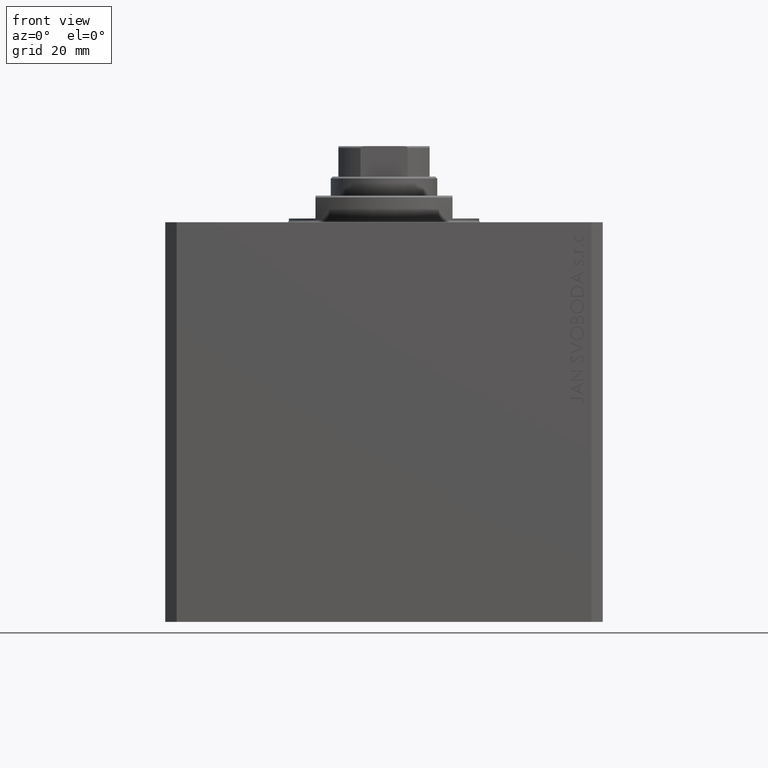
[diagram: clean part render]
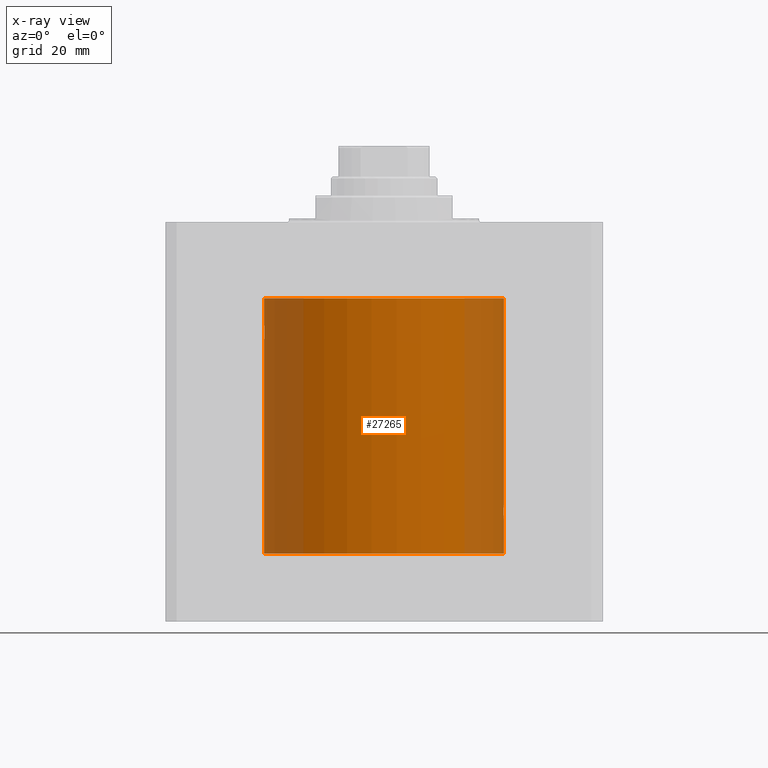
[diagram: x-ray — body ghosted, one internal face saturated and labeled with its STEP entity id]
A machine part, front view, then the same camera in x-ray: the body is ghosted and one INTERNAL B-rep face — a face not visible from any outside direction — is saturated and labeled: STEP entity #27265.
In plain terms, the highlighted cylindrical surface (partial cylindrical patch) has radius 31.5 mm, axis along (0, 0, 1).
Its self-contained STEP definition (entity closure, byte-faithful):
#1184 = EDGE_CURVE ( 'NONE', #8783, #36274, #15255, .T. ) ;
#1388 = CARTESIAN_POINT ( 'NONE',  ( -31.43643703231417774, -2.000106678383414049, -28.86966175168553406 ) ) ;
#1609 = CARTESIAN_POINT ( 'NONE',  ( -31.47646037642386219, -1.222440709149324567, -27.41163978522611799 ) ) ;
#2554 = EDGE_CURVE ( 'NONE', #32844, #39432, #33006, .T. ) ;
#2645 = CARTESIAN_POINT ( 'NONE',  ( 31.49999999999999289, -0.2641644753935982193, -77.99999999999994316 ) ) ;
#3361 = EDGE_CURVE ( 'NONE', #26613, #8783, #37581, .T. ) ;
#4435 = CARTESIAN_POINT ( 'NONE',  ( 0.000000000000000000, 0.000000000000000000, -87.09999999999999432 ) ) ;
#4651 = CARTESIAN_POINT ( 'NONE',  ( 31.50000000000000000, -8.369814204394935255E-24, -74.00000000000000000 ) ) ;
#4910 = DIRECTION ( 'NONE',  ( 1.000000000000000000, 0.000000000000000000, 0.000000000000000000 ) ) ;
#4988 = CARTESIAN_POINT ( 'NONE',  ( -31.50000000000000000, -0.2643002226642394148, -26.99999999999999289 ) ) ;
#5360 = DIRECTION ( 'NONE',  ( -0.000000000000000000, -0.000000000000000000, 1.000000000000000000 ) ) ;
#6443 = CARTESIAN_POINT ( 'NONE',  ( 31.43644381923633446, -1.999999999999602318, -76.13191476749157971 ) ) ;
#6897 = DIRECTION ( 'NONE',  ( 0.000000000000000000, 0.000000000000000000, 1.000000000000000000 ) ) ;
#6907 = VECTOR ( 'NONE', #40187, 1000.000000000000000 ) ;
#7145 = DIRECTION ( 'NONE',  ( 1.000000000000000000, 0.000000000000000000, 0.000000000000000000 ) ) ;
#7770 = EDGE_CURVE ( 'NONE', #26613, #43417, #10225, .T. ) ;
#7980 = EDGE_CURVE ( 'NONE', #32844, #9685, #17343, .T. ) ;
#8231 = VERTEX_POINT ( 'NONE', #16417 ) ;
#8520 = EDGE_LOOP ( 'NONE', ( #41028, #13165, #19204, #23226, #15369, #30297, #30071, #13924, #30282 ) ) ;
#8681 = CARTESIAN_POINT ( 'NONE',  ( 31.48485268472537513, -1.006016242866561550, -74.25189869564472644 ) ) ;
#8783 = VERTEX_POINT ( 'NONE', #25972 ) ;
#9029 = CARTESIAN_POINT ( 'NONE',  ( -31.44868351550920238, -1.798006778418087315, -28.11434503785448413 ) ) ;
#9602 = CARTESIAN_POINT ( 'NONE',  ( 31.45986829311679500, -1.591210340082438002, -77.21864166122153961 ) ) ;
#9685 = VERTEX_POINT ( 'NONE', #14934 ) ;
#9818 = CARTESIAN_POINT ( 'NONE',  ( 31.47236300924845764, -1.322453193766294888, -77.50602960223193350 ) ) ;
#10225 = LINE ( 'NONE', #37669, #20364 ) ;
#10878 = CARTESIAN_POINT ( 'NONE',  ( -31.50000000000000000, 3.857637417314162689E-15, -87.09999999999999432 ) ) ;
#11385 = CARTESIAN_POINT ( 'NONE',  ( 31.46411164879456379, -1.506057066634440167, -74.67757528993223559 ) ) ;
#11412 = AXIS2_PLACEMENT_3D ( 'NONE', #41345, #24239, #7145 ) ;
#11725 = CARTESIAN_POINT ( 'NONE',  ( -31.49655899566844397, -0.5241554089610698242, -30.94759297982581714 ) ) ;
#11884 = EDGE_CURVE ( 'NONE', #8231, #9685, #32656, .T. ) ;
#11946 = CARTESIAN_POINT ( 'NONE',  ( -31.48417770553094286, -1.004227724430747370, -27.26541759009648302 ) ) ;
#12166 = CARTESIAN_POINT ( 'NONE',  ( -31.47233969101135287, -1.323008904738059099, -27.49445245095093426 ) ) ;
#12394 = CARTESIAN_POINT ( 'NONE',  ( -31.50000000000000711, -0.2610337600763850685, -30.99999999999999645 ) ) ;
#12626 = CARTESIAN_POINT ( 'NONE',  ( -31.45993227857327312, -1.589955021705260263, -30.22030274622138535 ) ) ;
#12742 = LINE ( 'NONE', #18610, #6907 ) ;
#12866 = CARTESIAN_POINT ( 'NONE',  ( 31.50000000000000000, -8.369814204394935255E-24, -74.00000000000000000 ) ) ;
#13165 = ORIENTED_EDGE ( 'NONE', *, *, #7770, .T. ) ;
#13750 = EDGE_CURVE ( 'NONE', #39432, #36274, #33415, .T. ) ;
#13924 = ORIENTED_EDGE ( 'NONE', *, *, #13750, .T. ) ;
#14183 = CARTESIAN_POINT ( 'NONE',  ( 31.50000000000000000, 0.000000000000000000, -87.09999999999999432 ) ) ;
#14934 = CARTESIAN_POINT ( 'NONE',  ( 31.50000000000000000, 0.000000000000000000, -20.00000000000000355 ) ) ;
#14983 = CARTESIAN_POINT ( 'NONE',  ( 31.44044773446764296, -1.936206353227569288, -75.48220621295804733 ) ) ;
#15255 = LINE ( 'NONE', #25371, #36214 ) ;
#15325 = CARTESIAN_POINT ( 'NONE',  ( -31.50000000000000000, 3.857637408943224358E-15, -30.99999999999999645 ) ) ;
#15369 = ORIENTED_EDGE ( 'NONE', *, *, #11884, .T. ) ;
#16417 = CARTESIAN_POINT ( 'NONE',  ( -31.50000000000000000, 3.857637417314162689E-15, -20.00000000000000355 ) ) ;
#16794 = CARTESIAN_POINT ( 'NONE',  ( 31.44044572002255222, -1.936238609098684726, -76.51762761270639146 ) ) ;
#17010 = CARTESIAN_POINT ( 'NONE',  ( 31.44281458444440247, -1.897877411374703005, -76.64440220180918573 ) ) ;
#17343 = LINE ( 'NONE', #14183, #19643 ) ;
#18368 = CARTESIAN_POINT ( 'NONE',  ( 31.50000000000000711, -0.2611678296587112147, -74.00000000000005684 ) ) ;
#18450 = B_SPLINE_CURVE_WITH_KNOTS ( 'NONE', 3,
 ( #15325, #12394, #11725, #32408, #18488, #25660, #12626, #32627, #36462, #43203, #39617, #25442, #21860, #1388, #39176, #32856, #42976, #9029, #38953, #26107, #22743, #12166, #1609, #11946, #35571, #22078, #4988, #18708 ),
 .UNSPECIFIED., .F., .F.,
 ( 4, 2, 2, 2, 2, 2, 2, 2, 2, 2, 2, 2, 2, 4 ),
 ( 0.006254484652153074857, 0.007036116003226081106, 0.007817747354299088222, 0.008208563029835592648, 0.008599378705372095338, 0.008990194380908599764, 0.009381010056445102455, 0.009771825731981605145, 0.01016264140751810957, 0.01055345708305461400, 0.01094427275859111495, 0.01133508843412761938, 0.01172590410966412207, 0.01250753546073712918 ),
 .UNSPECIFIED. ) ;
#18488 = CARTESIAN_POINT ( 'NONE',  ( -31.47656828341634849, -1.228722494291965672, -30.59944629484386525 ) ) ;
#18610 = CARTESIAN_POINT ( 'NONE',  ( -31.50000000000000000, 3.857637417314162689E-15, -87.09999999999999432 ) ) ;
#18708 = CARTESIAN_POINT ( 'NONE',  ( -31.50000000000000000, 1.397936845058764387E-14, -27.00000000000000000 ) ) ;
#18800 = EDGE_CURVE ( 'NONE', #42956, #8231, #12742, .T. ) ;
#18808 = CARTESIAN_POINT ( 'NONE',  ( 31.49655533253666206, -0.5244229631002979009, -74.05246119243457770 ) ) ;
#19062 = AXIS2_PLACEMENT_3D ( 'NONE', #28732, #35706, #4910 ) ;
#19204 = ORIENTED_EDGE ( 'NONE', *, *, #43703, .T. ) ;
#19643 = VECTOR ( 'NONE', #30812, 1000.000000000000000 ) ;
#19948 = CARTESIAN_POINT ( 'NONE',  ( 31.43727763971489253, -1.987013243169728938, -76.26217678819566004 ) ) ;
#20364 = VECTOR ( 'NONE', #34278, 1000.000000000000000 ) ;
#20381 = CARTESIAN_POINT ( 'NONE',  ( 31.49651623355825691, -0.5266027764248433218, -77.94691302305948000 ) ) ;
#20652 = CYLINDRICAL_SURFACE ( 'NONE', #11412, 31.50000000000000000 ) ;
#20825 = CARTESIAN_POINT ( 'NONE',  ( 31.45220500162105282, -1.736105959509581131, -77.00148586720197841 ) ) ;
#21860 = CARTESIAN_POINT ( 'NONE',  ( -31.43645069034283068, -1.999891998387147041, -29.13359183610791447 ) ) ;
#22078 = CARTESIAN_POINT ( 'NONE',  ( -31.49651256782642150, -0.5268694869510501810, -27.05314117773801641 ) ) ;
#22612 = CARTESIAN_POINT ( 'NONE',  ( 31.45222028857342522, -1.735837506356491033, -74.99801201165938380 ) ) ;
#22743 = CARTESIAN_POINT ( 'NONE',  ( -31.46404664885025326, -1.507410583550298888, -27.67911419226929226 ) ) ;
#23226 = ORIENTED_EDGE ( 'NONE', *, *, #18800, .T. ) ;
#24208 = DIRECTION ( 'NONE',  ( 1.000000000000000000, 0.000000000000000000, 0.000000000000000000 ) ) ;
#24239 = DIRECTION ( 'NONE',  ( -0.000000000000000000, -0.000000000000000000, 1.000000000000000000 ) ) ;
#25099 = CARTESIAN_POINT ( 'NONE',  ( 31.44872486828352720, -1.797284557493781243, -75.11290496716131315 ) ) ;
#25276 = CARTESIAN_POINT ( 'NONE',  ( -31.50000000000000000, 3.857637408943224358E-15, -30.99999999999999645 ) ) ;
#25321 = CARTESIAN_POINT ( 'NONE',  ( 31.43727534210788477, -1.987050037257513280, -75.73801221858082044 ) ) ;
#25371 = CARTESIAN_POINT ( 'NONE',  ( 31.50000000000000000, 0.000000000000000000, -87.09999999999999432 ) ) ;
#25442 = CARTESIAN_POINT ( 'NONE',  ( -31.43728786348615856, -1.986852921497533453, -29.26344694824611992 ) ) ;
#25541 = CARTESIAN_POINT ( 'NONE',  ( 31.44282756203102380, -1.897662384614844600, -75.35498306075693620 ) ) ;
#25660 = CARTESIAN_POINT ( 'NONE',  ( -31.46413940124423547, -1.505476405065120815, -30.32307885188653884 ) ) ;
#25759 = CARTESIAN_POINT ( 'NONE',  ( 31.43644381923633446, -1.999999999999602318, -75.86794965735502672 ) ) ;
#25972 = CARTESIAN_POINT ( 'NONE',  ( 31.50000000000000000, 0.000000000000000000, -87.09999999999999432 ) ) ;
#26062 = CARTESIAN_POINT ( 'NONE',  ( 31.50000000000000000, 2.115822464172388752E-15, -78.00000000000000000 ) ) ;
#26107 = CARTESIAN_POINT ( 'NONE',  ( -31.45983898797870992, -1.591788710457754608, -27.78210723905913682 ) ) ;
#26613 = VERTEX_POINT ( 'NONE', #10878 ) ;
#27265 = ADVANCED_FACE ( 'NONE', ( #30976 ), #20652, .F. ) ;
#27349 = CARTESIAN_POINT ( 'NONE',  ( 31.48419274771890031, -1.003752801430392694, -77.73485257070035459 ) ) ;
#27569 = CARTESIAN_POINT ( 'NONE',  ( 31.47648100377266900, -1.221906821746971517, -77.58876582522816534 ) ) ;
#28732 = CARTESIAN_POINT ( 'NONE',  ( 0.000000000000000000, 0.000000000000000000, -20.00000000000000355 ) ) ;
#28807 = CARTESIAN_POINT ( 'NONE',  ( -31.50000000000000000, 1.397936845058764387E-14, -27.00000000000000000 ) ) ;
#30071 = ORIENTED_EDGE ( 'NONE', *, *, #2554, .T. ) ;
#30277 = CARTESIAN_POINT ( 'NONE',  ( 31.50000000000000000, 2.115822464172388752E-15, -78.00000000000000000 ) ) ;
#30282 = ORIENTED_EDGE ( 'NONE', *, *, #1184, .F. ) ;
#30297 = ORIENTED_EDGE ( 'NONE', *, *, #7980, .F. ) ;
#30706 = CARTESIAN_POINT ( 'NONE',  ( 31.46407444263389053, -1.506829553733667337, -77.32154164084835202 ) ) ;
#30812 = DIRECTION ( 'NONE',  ( -0.000000000000000000, -0.000000000000000000, 1.000000000000000000 ) ) ;
#30929 = CARTESIAN_POINT ( 'NONE',  ( 31.44871262113420229, -1.797498854984184602, -76.88667397200633502 ) ) ;
#30976 = FACE_OUTER_BOUND ( 'NONE', #8520, .T. ) ;
#31537 = CARTESIAN_POINT ( 'NONE',  ( 31.43644381923632736, -1.999999999999602318, -76.00000000000000000 ) ) ;
#32408 = CARTESIAN_POINT ( 'NONE',  ( -31.48486704052294627, -1.005542093080670885, -30.74835419948385606 ) ) ;
#32505 = CARTESIAN_POINT ( 'NONE',  ( 31.47654718428505305, -1.229266569362845063, -74.40094912261049842 ) ) ;
#32627 = CARTESIAN_POINT ( 'NONE',  ( -31.45225007357219127, -1.735298606275290645, -30.00291301244936193 ) ) ;
#32656 = CIRCLE ( 'NONE', #19062, 31.50000000000000000 ) ;
#32731 = CARTESIAN_POINT ( 'NONE',  ( 31.45990289235030346, -1.590535423469516152, -74.78044727709638551 ) ) ;
#32844 = VERTEX_POINT ( 'NONE', #12866 ) ;
#32856 = CARTESIAN_POINT ( 'NONE',  ( -31.44042406599102080, -1.936589180163527990, -28.48366908012522458 ) ) ;
#33006 = B_SPLINE_CURVE_WITH_KNOTS ( 'NONE', 3,
 ( #4651, #18368, #18808, #8681, #32505, #11385, #32731, #22612, #25099, #25541, #14983, #25321, #25759, #39713 ),
 .UNSPECIFIED., .F., .F.,
 ( 4, 2, 2, 2, 2, 2, 4 ),
 ( 0.006254484652153861554, 0.007036517457003363916, 0.007818550261852866279, 0.008209566664277617026, 0.008600583066702367774, 0.008991599469127118521, 0.009382615871551869269 ),
 .UNSPECIFIED. ) ;
#33415 = B_SPLINE_CURVE_WITH_KNOTS ( 'NONE', 3,
 ( #37470, #6443, #19948, #16794, #17010, #30929, #20825, #9602, #30706, #9818, #27569, #27349, #37252, #20381, #2645, #30277 ),
 .UNSPECIFIED., .F., .F.,
 ( 4, 2, 2, 2, 2, 2, 2, 4 ),
 ( 0.009382615871551869269, 0.009773230820200028493, 0.01016384576884818598, 0.01055446071749634521, 0.01094507566614450270, 0.01133569061479266192, 0.01172630556344082114, 0.01250753546073715521 ),
 .UNSPECIFIED. ) ;
#34278 = DIRECTION ( 'NONE',  ( -0.000000000000000000, -0.000000000000000000, 1.000000000000000000 ) ) ;
#35571 = CARTESIAN_POINT ( 'NONE',  ( -31.48771967710822750, -0.8876842815627609129, -27.20306391354861475 ) ) ;
#35706 = DIRECTION ( 'NONE',  ( 0.000000000000000000, 0.000000000000000000, 1.000000000000000000 ) ) ;
#36214 = VECTOR ( 'NONE', #5360, 1000.000000000000000 ) ;
#36274 = VERTEX_POINT ( 'NONE', #26062 ) ;
#36462 = CARTESIAN_POINT ( 'NONE',  ( -31.44875398393470789, -1.796776260624483479, -29.88811294768924753 ) ) ;
#37252 = CARTESIAN_POINT ( 'NONE',  ( 31.48773138987390752, -0.8872616597623499413, -77.79713993556131868 ) ) ;
#37470 = CARTESIAN_POINT ( 'NONE',  ( 31.43644381923632736, -1.999999999999602318, -76.00000000000000000 ) ) ;
#37581 = CIRCLE ( 'NONE', #44037, 31.50000000000000000 ) ;
#37669 = CARTESIAN_POINT ( 'NONE',  ( -31.50000000000000000, 3.857637417314162689E-15, -87.09999999999999432 ) ) ;
#38953 = CARTESIAN_POINT ( 'NONE',  ( -31.45217525070748721, -1.736644018522236488, -27.99943934275634305 ) ) ;
#39176 = CARTESIAN_POINT ( 'NONE',  ( -31.43726516414084671, -1.987209626982197275, -28.73928335309295790 ) ) ;
#39432 = VERTEX_POINT ( 'NONE', #31537 ) ;
#39617 = CARTESIAN_POINT ( 'NONE',  ( -31.44046947083549526, -1.935854384198227640, -29.51909212032544971 ) ) ;
#39713 = CARTESIAN_POINT ( 'NONE',  ( 31.43644381923632736, -1.999999999999602318, -76.00000000000000000 ) ) ;
#40187 = DIRECTION ( 'NONE',  ( -0.000000000000000000, -0.000000000000000000, 1.000000000000000000 ) ) ;
#41028 = ORIENTED_EDGE ( 'NONE', *, *, #3361, .F. ) ;
#41345 = CARTESIAN_POINT ( 'NONE',  ( 0.000000000000000000, 0.000000000000000000, -87.09999999999999432 ) ) ;
#42956 = VERTEX_POINT ( 'NONE', #28807 ) ;
#42976 = CARTESIAN_POINT ( 'NONE',  ( -31.44278916585178862, -1.898297317516837390, -28.35682010174544843 ) ) ;
#43203 = CARTESIAN_POINT ( 'NONE',  ( -31.44285297002221569, -1.897242519647255321, -29.64623553000395972 ) ) ;
#43417 = VERTEX_POINT ( 'NONE', #25276 ) ;
#43703 = EDGE_CURVE ( 'NONE', #43417, #42956, #18450, .T. ) ;
#44037 = AXIS2_PLACEMENT_3D ( 'NONE', #4435, #6897, #24208 ) ;